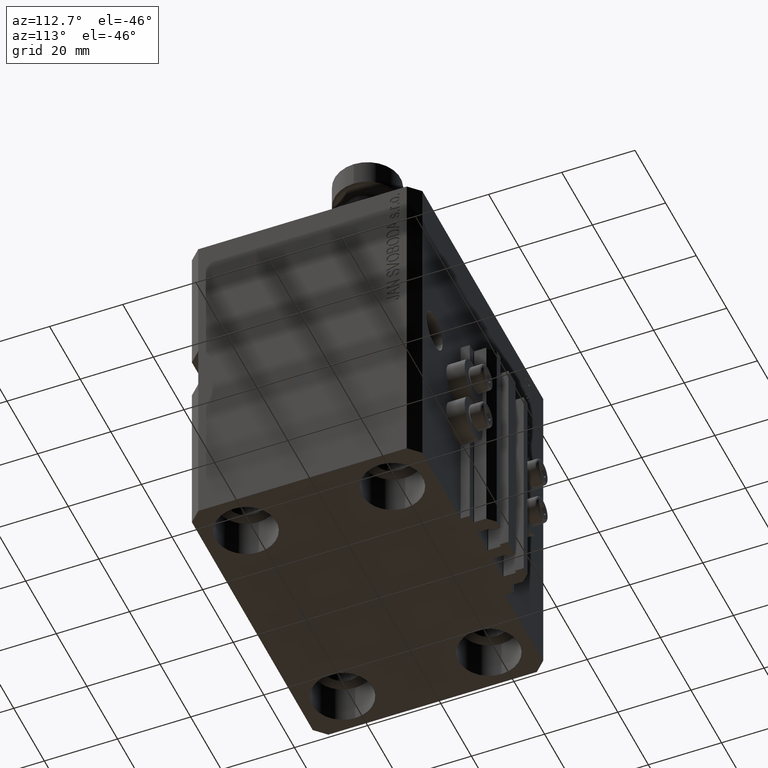
[diagram: clean part render]
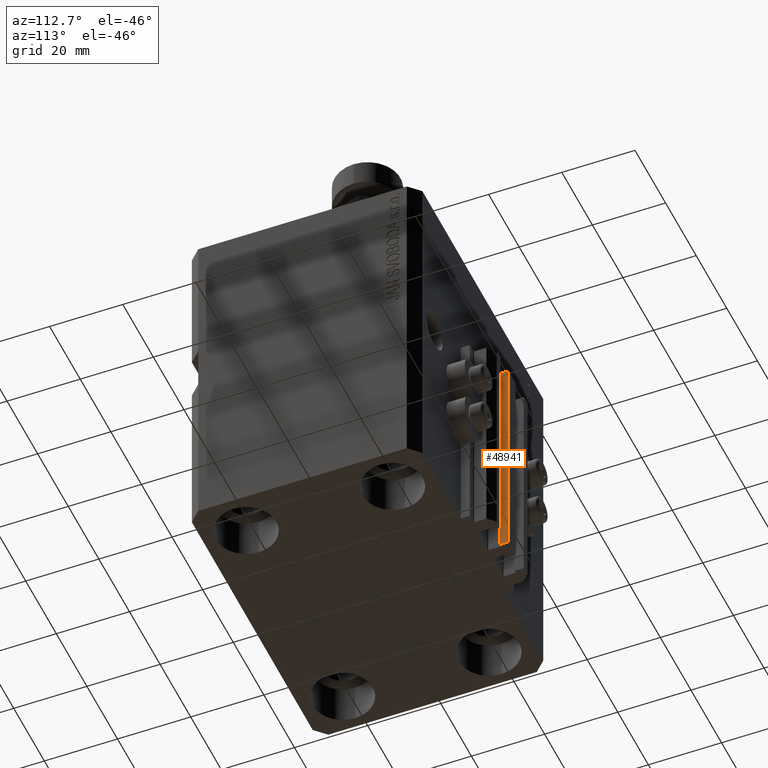
[diagram: same view with one face highlighted and labeled with its STEP entity id]
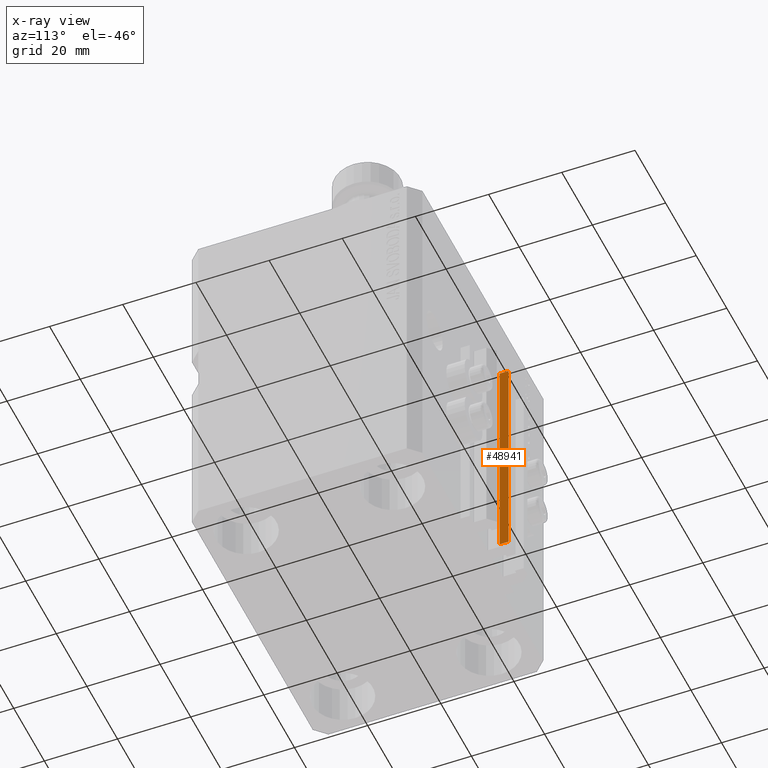
[diagram: x-ray of the same camera — body ghosted, the highlighted face saturated]
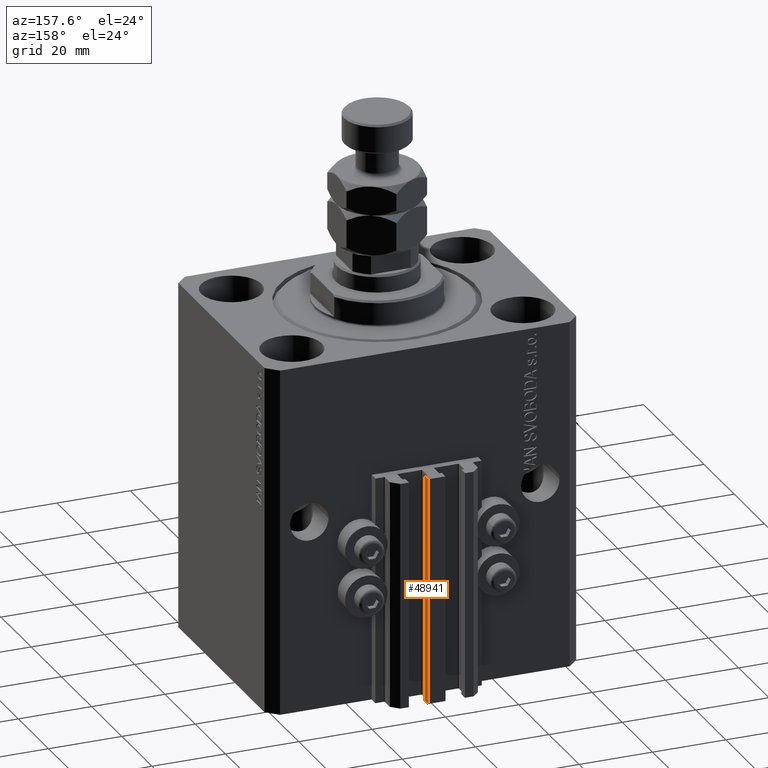
[diagram: same view with one face highlighted and labeled with its STEP entity id]
A machine part, auxiliary view. The second image highlights one B-rep face of the part: STEP entity #48941.
The next image is the same camera in x-ray: the body ghosted, the highlighted face saturated — about 0% of this face is hidden behind the body in this view.
A second angle (auxiliary view) of the same face is appended — the face is thin or edge-on in the first view.
In plain terms, the highlighted planar face has unit normal (1, 0, 0).
Its self-contained STEP definition (entity closure, byte-faithful):
#432 = CARTESIAN_POINT ( 'NONE',  ( 2.349999999999999645, 39.50000000000000711, -95.00000000000000000 ) ) ;
#521 = LINE ( 'NONE', #18982, #31231 ) ;
#3981 = VECTOR ( 'NONE', #42350, 1000.000000000000000 ) ;
#4476 = CARTESIAN_POINT ( 'NONE',  ( 2.349999999999999645, 39.50000000000000711, -33.00000000000000000 ) ) ;
#4967 = ORIENTED_EDGE ( 'NONE', *, *, #31613, .F. ) ;
#7722 = EDGE_CURVE ( 'NONE', #43118, #40206, #32303, .T. ) ;
#10111 = ORIENTED_EDGE ( 'NONE', *, *, #13537, .T. ) ;
#10429 = CARTESIAN_POINT ( 'NONE',  ( 2.349999999999999645, 37.10000000000000853, -33.00000000000000000 ) ) ;
#10491 = CARTESIAN_POINT ( 'NONE',  ( 2.349999999999999645, 37.10000000000000853, -95.00000000000000000 ) ) ;
#13537 = EDGE_CURVE ( 'NONE', #35670, #43118, #48105, .T. ) ;
#14447 = PLANE ( 'NONE',  #28740 ) ;
#15217 = VECTOR ( 'NONE', #21951, 1000.000000000000000 ) ;
#16699 = EDGE_CURVE ( 'NONE', #36009, #40206, #521, .T. ) ;
#16886 = CARTESIAN_POINT ( 'NONE',  ( 2.349999999999999645, 39.50000000000000711, -95.00000000000000000 ) ) ;
#18982 = CARTESIAN_POINT ( 'NONE',  ( 2.349999999999999645, 37.10000000000000853, -33.00000000000000000 ) ) ;
#19556 = ORIENTED_EDGE ( 'NONE', *, *, #7722, .T. ) ;
#21951 = DIRECTION ( 'NONE',  ( 0.000000000000000000, 1.000000000000000000, 0.000000000000000000 ) ) ;
#28740 = AXIS2_PLACEMENT_3D ( 'NONE', #30112, #37826, #33606 ) ;
#30112 = CARTESIAN_POINT ( 'NONE',  ( 2.349999999999999645, 37.10000000000000853, -95.00000000000000000 ) ) ;
#31231 = VECTOR ( 'NONE', #41643, 1000.000000000000000 ) ;
#31613 = EDGE_CURVE ( 'NONE', #35670, #36009, #42531, .T. ) ;
#32303 = LINE ( 'NONE', #16886, #3981 ) ;
#33606 = DIRECTION ( 'NONE',  ( 0.000000000000000000, 0.000000000000000000, -1.000000000000000000 ) ) ;
#35670 = VERTEX_POINT ( 'NONE', #10491 ) ;
#36009 = VERTEX_POINT ( 'NONE', #10429 ) ;
#37826 = DIRECTION ( 'NONE',  ( 1.000000000000000000, 0.000000000000000000, 0.000000000000000000 ) ) ;
#38585 = EDGE_LOOP ( 'NONE', ( #40193, #4967, #10111, #19556 ) ) ;
#40193 = ORIENTED_EDGE ( 'NONE', *, *, #16699, .F. ) ;
#40206 = VERTEX_POINT ( 'NONE', #4476 ) ;
#40643 = CARTESIAN_POINT ( 'NONE',  ( 2.349999999999999645, 37.10000000000000853, -95.00000000000000000 ) ) ;
#41643 = DIRECTION ( 'NONE',  ( 0.000000000000000000, 1.000000000000000000, 0.000000000000000000 ) ) ;
#41816 = DIRECTION ( 'NONE',  ( 0.000000000000000000, 0.000000000000000000, 1.000000000000000000 ) ) ;
#42350 = DIRECTION ( 'NONE',  ( 0.000000000000000000, 0.000000000000000000, 1.000000000000000000 ) ) ;
#42531 = LINE ( 'NONE', #46267, #42677 ) ;
#42677 = VECTOR ( 'NONE', #41816, 1000.000000000000000 ) ;
#43118 = VERTEX_POINT ( 'NONE', #432 ) ;
#46267 = CARTESIAN_POINT ( 'NONE',  ( 2.349999999999999645, 37.10000000000000853, -95.00000000000000000 ) ) ;
#48105 = LINE ( 'NONE', #40643, #15217 ) ;
#48789 = FACE_OUTER_BOUND ( 'NONE', #38585, .T. ) ;
#48941 = ADVANCED_FACE ( 'NONE', ( #48789 ), #14447, .T. ) ;